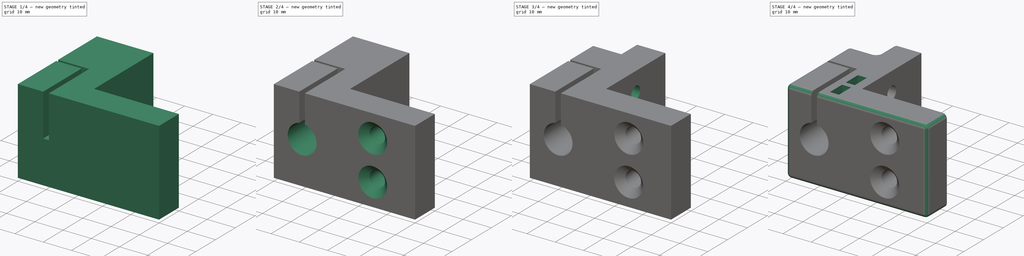
[diagram: build sequence overview — one tinted view per stage of 4, left to right]
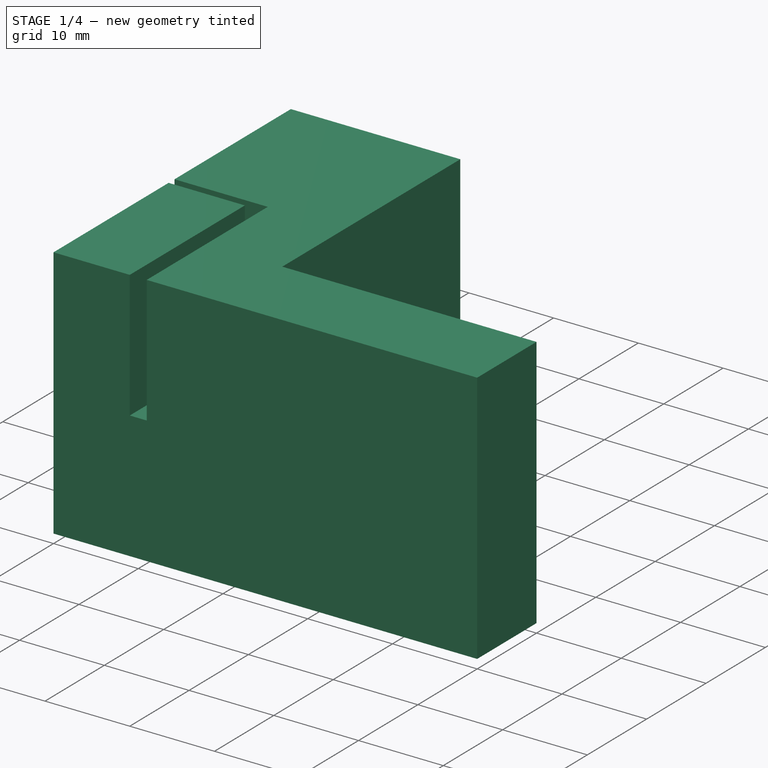
[diagram: stage 1 of 4 — iso view after this stage's code; geometry added in this stage tinted green]
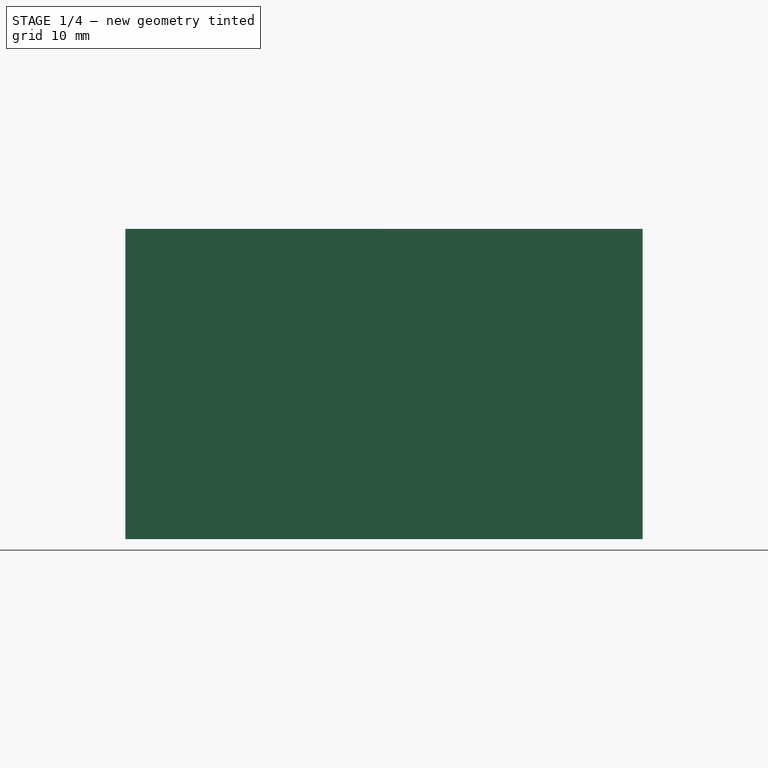
[diagram: stage 1 of 4 — front view after this stage's code; geometry added in this stage tinted green]
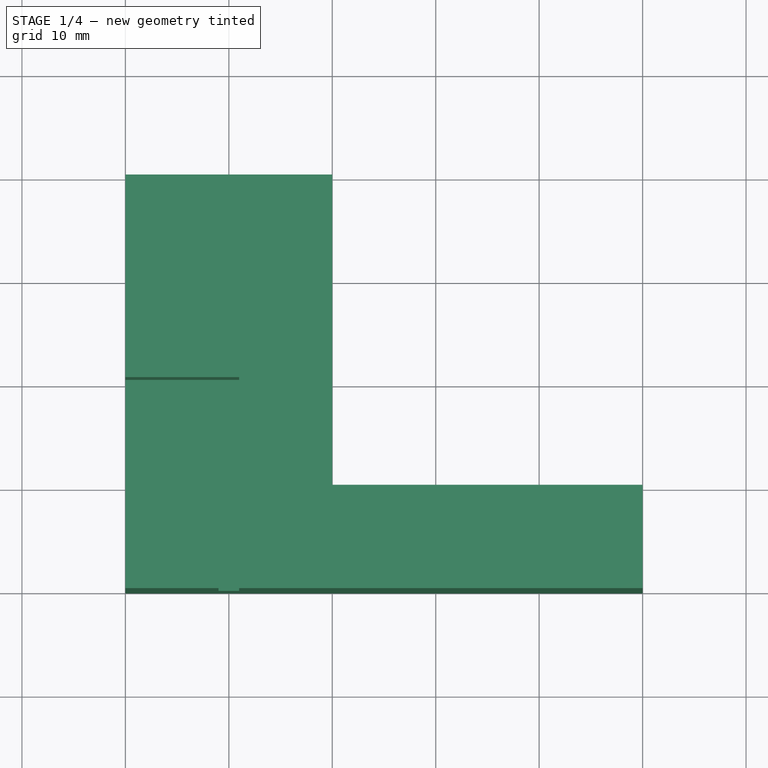
[diagram: stage 1 of 4 — top view after this stage's code; geometry added in this stage tinted green]
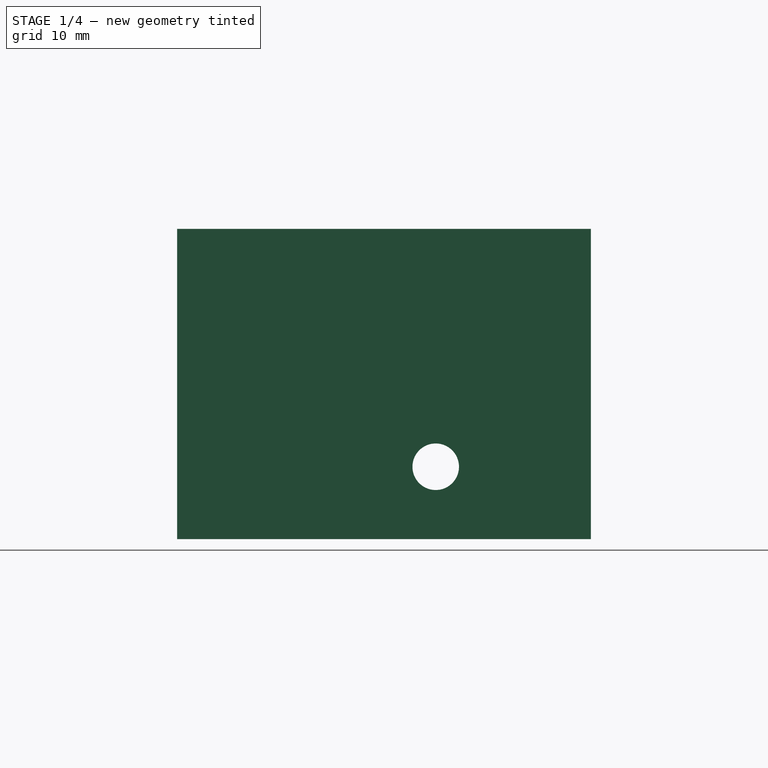
[diagram: stage 1 of 4 — right view after this stage's code; geometry added in this stage tinted green]
FCSTD DOCUMENT  (FreeCAD 0.19R24366 (Git))
Label: Y-rod-mount
License: All rights reserved
LicenseURL: http://en.wikipedia.org/wiki/All_rights_reserved
objects: Sketcher::SketchObject×8, PartDesign::Pocket×4, PartDesign::Plane×3, PartDesign::Hole×3, PartDesign::LinearPattern×3, PartDesign::Pad×1, PartDesign::Fillet×1, PartDesign::Body×1, App::Part×1
note: 33 computed .brp shape members not serialized (recipe doc carries the construction recipe); baked Part::Feature solids carry a one-line shape summary decoded from their .brp

FEATURE [PartDesign::Plane] DatumPlane002
  Length = 87.8452
  MapMode = 5
  Placement = pos=(0,0,0) rot=(1,0,0;1.5708rad)
  ResizeMode = 0
  Width = 67.8452
FEATURE [Sketcher::SketchObject] Sketch006
  FullyConstrained = true
  MapMode = 5
  Placement = pos=(0,0,0) rot=(1,0,0;1.5708rad)
  Support = -> [DatumPlane002]
  sketch-geometry (1):
    g0: Circle CenterX=10 CenterY=15 CenterZ=0 NormalX=0 NormalY=0 NormalZ=1 AngleXU=0 Radius=5.1
  constraints (3):
    c: DistanceX(g-1,g0) = 10
    c: DistanceY(g-1,g0) = 15
    c: Diameter(g0) = 10.2
FEATURE [Sketcher::SketchObject] Sketch007
  FullyConstrained = true
  MapMode = 5
  Placement = pos=(0,0,0) rot=(1,0,0;1.5708rad)
  Support = -> [DatumPlane002]
  sketch-geometry (1):
    g0: Circle CenterX=35 CenterY=8 CenterZ=0 NormalX=0 NormalY=0 NormalZ=1 AngleXU=0 Radius=2
  constraints (3):
    c: DistanceY(g-1,g0) = 8
    c: Diameter(g0) = 4
    c: DistanceX(g-1,g0) = 35
FEATURE [Sketcher::SketchObject] Sketch
  FullyConstrained = true
  MapMode = 5
  Support = -> [XY_Plane001]
  sketch-geometry (6):
    g0: LineSegment StartX=0 StartY=40 StartZ=0 EndX=20 EndY=40 EndZ=0
    g1: LineSegment StartX=20 StartY=40 StartZ=0 EndX=20 EndY=10 EndZ=0
    g2: LineSegment StartX=20 StartY=10 StartZ=0 EndX=50 EndY=10 EndZ=0
    g3: LineSegment StartX=50 StartY=10 StartZ=0 EndX=50 EndY=0 EndZ=0
    g4: LineSegment StartX=50 StartY=0 StartZ=0 EndX=0 EndY=0 EndZ=0
    g5: LineSegment StartX=0 StartY=0 StartZ=0 EndX=0 EndY=40 EndZ=0
  constraints (17):
    c: PointOnObject(g0,g-2)
    c: Horizontal(g0)
    c: Coincident(g0,g1)
    c: Vertical(g1)
    c: Coincident(g1,g2)
    c: Horizontal(g2)
    c: Coincident(g2,g3)
    c: PointOnObject(g3,g-1)
    c: Vertical(g3)
    c: Coincident(g3,g4)
    c: Coincident(g4,g-1)
    c: Coincident(g4,g5)
    c: Coincident(g5,g0)
    c: DistanceX(g1,g2) = 30
    c: DistanceY(g1,g0) = 30
    c: DistanceY(g3,g2) = 10
    c: DistanceX(g0,g0) = 20
FEATURE [PartDesign::Pad] Pad  label="Base Pad"
  Direction = (1,1,1)
  Length = 30
  Length2 = 100
  Profile = -> Sketch
  Type = 0
FEATURE [PartDesign::Plane] DatumPlane
  Length = 76.9583
  MapMode = 5
  Placement = pos=(0,0,0) rot=(0.57735,-0.57735,-0.57735;2.0944rad)
  ResizeMode = 0
  Support = -> [Pad]
  Width = 66.9583
FEATURE [Sketcher::SketchObject] Sketch003
  FullyConstrained = true
  MapMode = 5
  Placement = pos=(0,0,0) rot=(0.57735,-0.57735,-0.57735;2.0944rad)
  Support = -> [DatumPlane]
  sketch-geometry (2):
    g0: Circle CenterX=-6 CenterY=25 CenterZ=0 NormalX=0 NormalY=0 NormalZ=1 AngleXU=0 Radius=2.25
    g1: Circle CenterX=-14 CenterY=25 CenterZ=0 NormalX=0 NormalY=0 NormalZ=1 AngleXU=0 Radius=2.25
  constraints (6):
    c: DistanceX(g0,g-1) = 6
    c: DistanceX(g1,g0) = 8
    c: Diameter(g0) = 4.5
    c: Diameter(g1) = 4.5
    c: DistanceY(g-1,g1) = 25
    c: DistanceY(g-1,g0) = 25
FEATURE [Sketcher::SketchObject] Sketch005
  FullyConstrained = true
  MapMode = 5
  Placement = pos=(0,0,0) rot=(0.57735,-0.57735,-0.57735;2.0944rad)
  Support = -> [DatumPlane]
  sketch-geometry (1):
    g0: Circle CenterX=-25 CenterY=7 CenterZ=0 NormalX=0 NormalY=0 NormalZ=1 AngleXU=0 Radius=2.5
  constraints (3):
    c: DistanceX(g0,g-1) = 25
    c: DistanceY(g-1,g0) = 7
    c: Diameter(g0) = 5
FEATURE [PartDesign::Plane] DatumPlane001
  Length = 88.9642
  MapMode = 5
  Placement = pos=(0,0,30) rot=(0,0,1;0rad)
  ResizeMode = 0
  Width = 78.9642
FEATURE [Sketcher::SketchObject] Sketch008
  FullyConstrained = true
  MapMode = 5
  Placement = pos=(0,0,30) rot=(0,0,1;0rad)
  Support = -> [DatumPlane001]
  sketch-geometry (4):
    g0: LineSegment StartX=0 StartY=40 StartZ=0 EndX=10 EndY=40 EndZ=0
    g1: LineSegment StartX=10 StartY=40 StartZ=0 EndX=10 EndY=32 EndZ=0
    g2: LineSegment StartX=10 StartY=32 StartZ=0 EndX=0 EndY=32 EndZ=0
    g3: LineSegment StartX=0 StartY=32 StartZ=0 EndX=0 EndY=40 EndZ=0
  constraints (12):
    c: Coincident(g0,g1)
    c: Coincident(g1,g2)
    c: Coincident(g2,g3)
    c: Coincident(g3,g0)
    c: Horizontal(g0)
    c: Horizontal(g2)
    c: Vertical(g1)
    c: Vertical(g3)
    c: PointOnObject(g0,g-2)
    c: DistanceY(g-1,g0) = 40
    c: DistanceY(g2,g0) = 8
    c: DistanceX(g0,g0) = 10
FEATURE [Sketcher::SketchObject] Sketch004
  FullyConstrained = true
  MapMode = 5
  Placement = pos=(0,0,30) rot=(0,0,1;0rad)
  Support = -> [DatumPlane001]
  sketch-geometry (7):
    g0: LineSegment StartX=9 StartY=0 StartZ=0 EndX=11 EndY=0 EndZ=0
    g1: LineSegment StartX=11 StartY=0 StartZ=0 EndX=11 EndY=19.4 EndZ=0
    g2: LineSegment StartX=9 StartY=19.4 StartZ=0 EndX=9 EndY=0 EndZ=0
    g3: LineSegment StartX=11 StartY=19.4 StartZ=0 EndX=11 EndY=20.4 EndZ=0
    g4: LineSegment StartX=11 StartY=20.4 StartZ=0 EndX=-4 EndY=20.4 EndZ=0
    g5: LineSegment StartX=-4 StartY=20.4 StartZ=0 EndX=-4 EndY=19.4 EndZ=0
    g6: LineSegment StartX=-4 StartY=19.4 StartZ=0 EndX=9 EndY=19.4 EndZ=0
  constraints (21):
    c: Coincident(g0,g1)
    c: Coincident(g2,g0)
    c: Horizontal(g0)
    c: Vertical(g1)
    c: Vertical(g2)
    c: PointOnObject(g0,g-1)
    c: DistanceX(g0,g0) = 2
    c: DistanceX(g-1,g0) = 9
    c: DistanceY(g0,g1) = 19.4
    c: Coincident(g1,g3)
    c: Vertical(g3)
    c: Coincident(g3,g4)
    c: Horizontal(g4)
    c: Coincident(g4,g5)
    c: Vertical(g5)
    c: Coincident(g5,g6)
    c: Horizontal(g6)
    c: DistanceY(g5,g4) = 1
    c: Coincident(g6,g2)
    c: DistanceX(g4,g3) = 15
    c: DistanceY(g1,g3) = 1
FEATURE [PartDesign::Pocket] Pocket002  label="Screw tightening tolerance"
  BaseFeature = -> Pad
  Length = 15
  Length2 = 100
  Profile = -> Sketch004
  Type = 0
FEATURE [PartDesign::Hole] Hole  label="M4 Hole"
  BaseFeature = -> Pocket002
  Depth = 25
  DepthType = 0
  Diameter = 4.5
  DrillForDepth = false
  DrillPoint = 1
  DrillPointAngle = 118
  HoleCutCountersinkAngle = 90
  HoleCutCustomValues = false
  HoleCutDepth = 11.5
  HoleCutDiameter = 7.4
  HoleCutType = 1
  ModelActualThread = false
  Profile = -> Sketch005
  Tapered = false
  TaperedAngle = 90
  ThreadAngle = 0
  ThreadClass = 0
  ThreadCutOffInner = 0
  ThreadCutOffOuter = 0
  ThreadDirection = 0
  ThreadFit = 0
  ThreadPitch = 0
  ThreadSize = 11
  ThreadType = 1
  Threaded = false
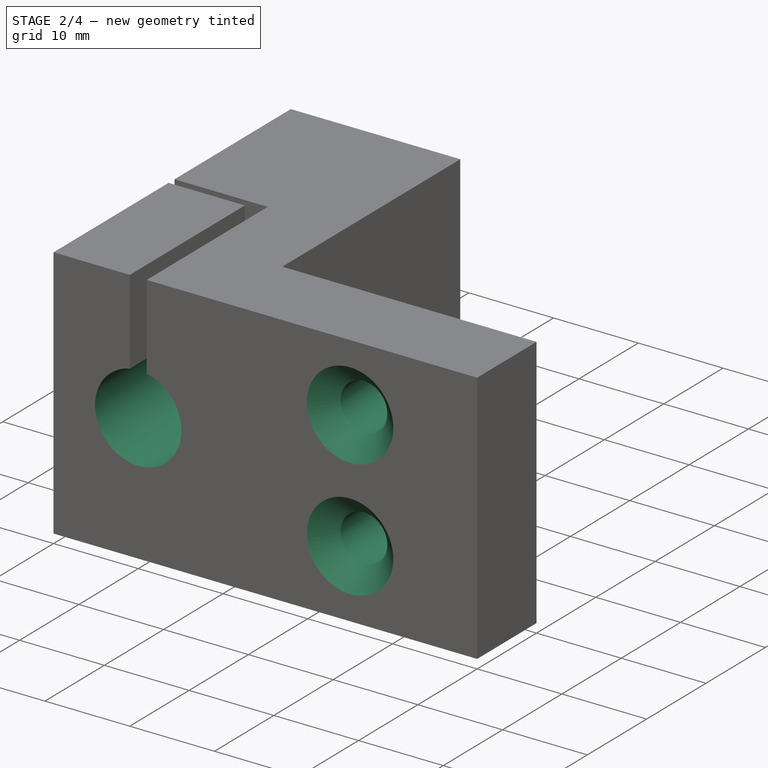
[diagram: stage 2 of 4 — iso view after this stage's code; geometry added in this stage tinted green]
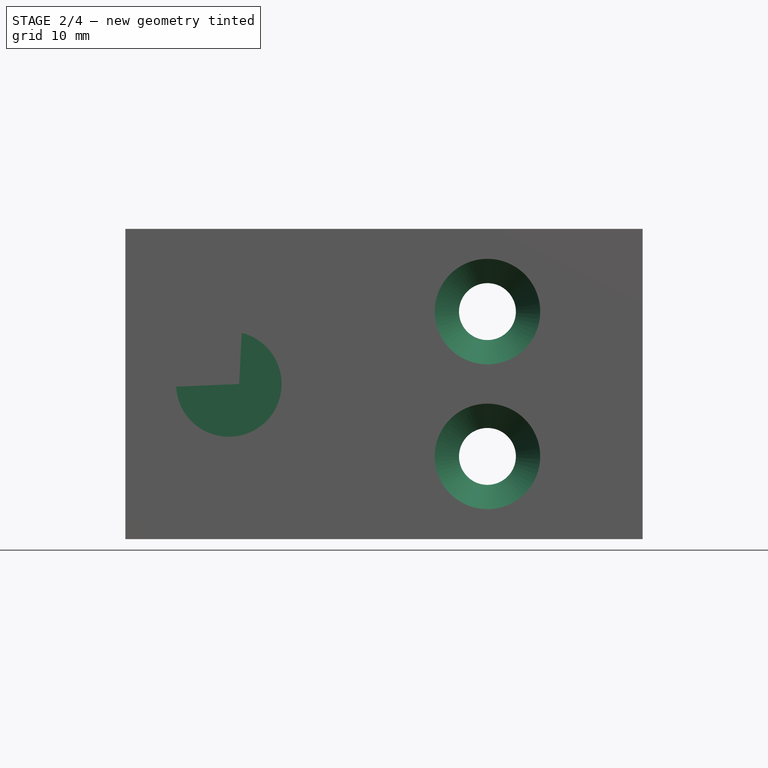
[diagram: stage 2 of 4 — front view after this stage's code; geometry added in this stage tinted green]
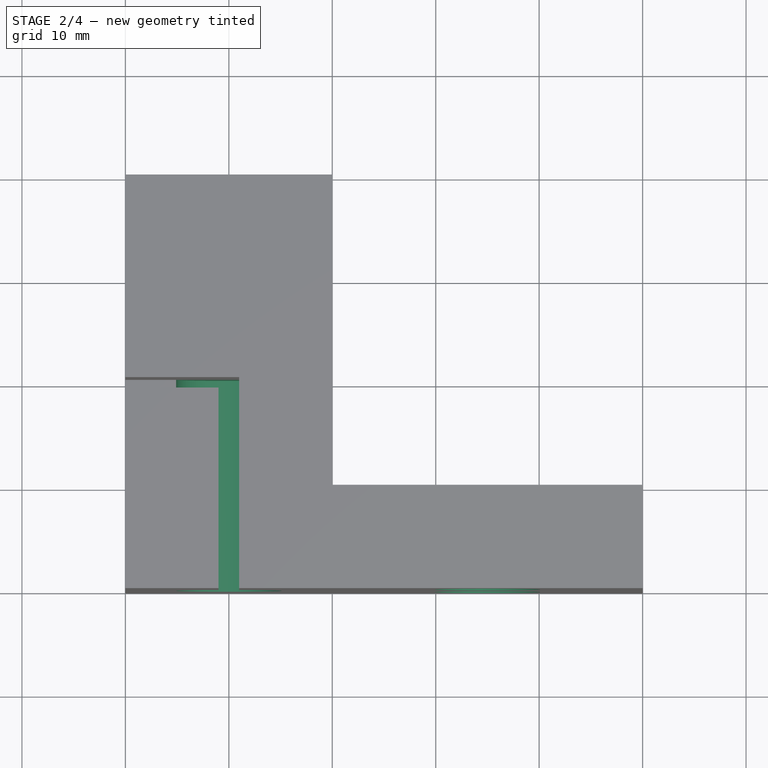
[diagram: stage 2 of 4 — top view after this stage's code; geometry added in this stage tinted green]
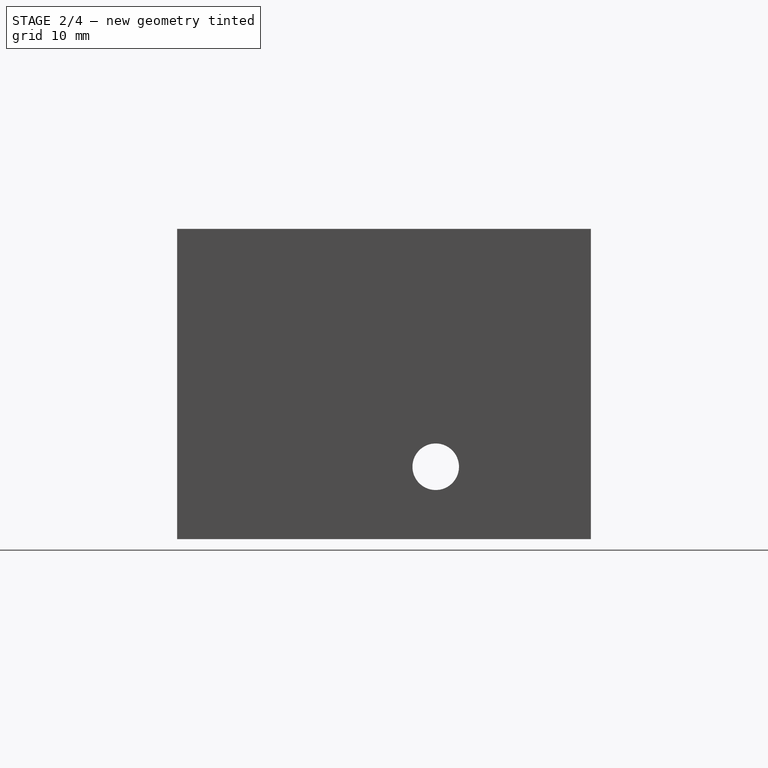
[diagram: stage 2 of 4 — right view after this stage's code; geometry added in this stage tinted green]
FEATURE [PartDesign::Pocket] Pocket003  label="Linear rod pocket 10mm"
  BaseFeature = -> Hole
  Length = 20.4
  Length2 = 100
  Profile = -> Sketch006
  Type = 0
FEATURE [PartDesign::Hole] Hole001  label="M5 hole"
  BaseFeature = -> Pocket003
  Depth = 25
  DepthType = 0
  Diameter = 5.5
  DrillForDepth = false
  DrillPoint = 1
  DrillPointAngle = 118
  HoleCutCountersinkAngle = 90
  HoleCutCustomValues = false
  HoleCutDepth = 0
  HoleCutDiameter = 10.2
  HoleCutType = 2
  ModelActualThread = false
  Profile = -> Sketch007
  Tapered = false
  TaperedAngle = 90
  ThreadAngle = 0
  ThreadClass = 0
  ThreadCutOffInner = 0
  ThreadCutOffOuter = 0
  ThreadDirection = 0
  ThreadFit = 0
  ThreadPitch = 0
  ThreadSize = 13
  ThreadType = 1
  Threaded = false
FEATURE [PartDesign::LinearPattern] LinearPattern001  label="M5 holes"
  BaseFeature = -> Hole001
  Direction = -> Sketch007 [V_Axis]
  Length = 14
  Occurrences = 2
  Originals = -> [Hole001]
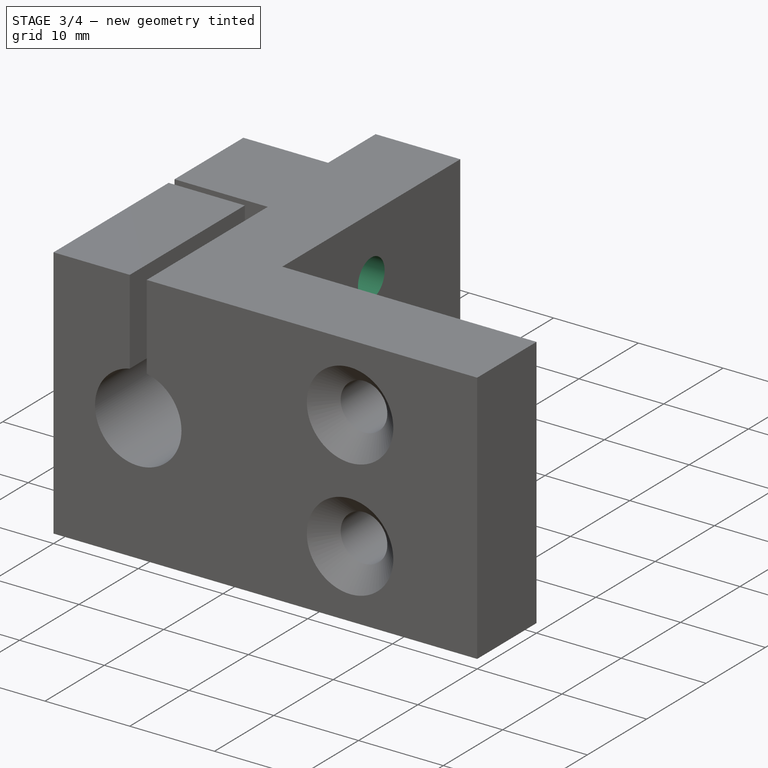
[diagram: stage 3 of 4 — iso view after this stage's code; geometry added in this stage tinted green]
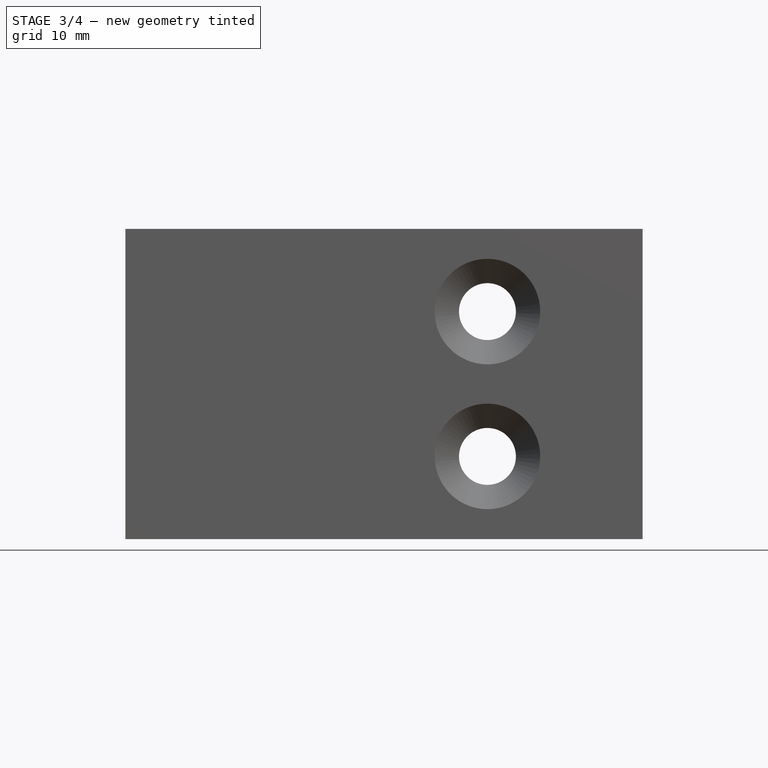
[diagram: stage 3 of 4 — front view after this stage's code; geometry added in this stage tinted green]
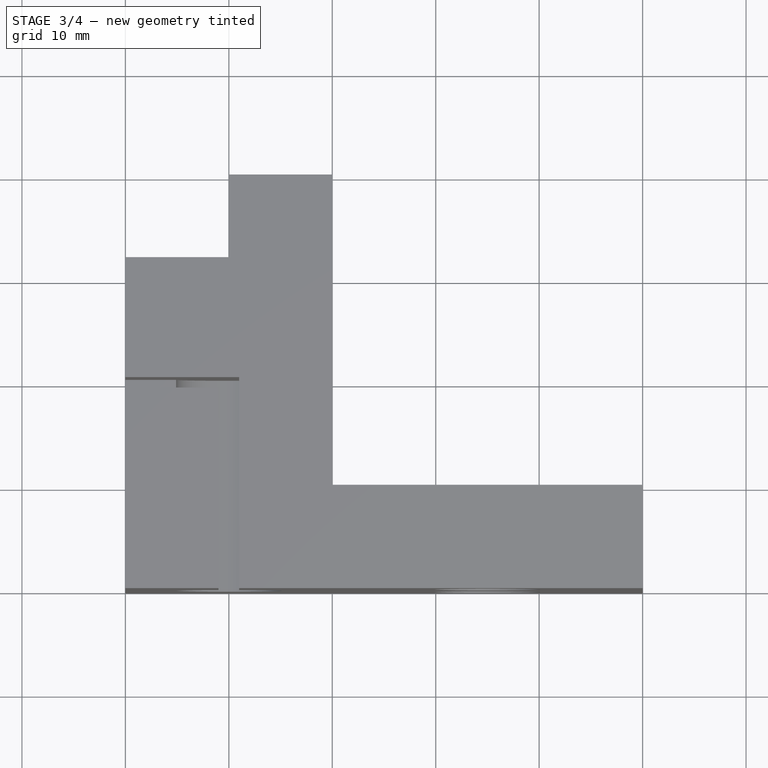
[diagram: stage 3 of 4 — top view after this stage's code; geometry added in this stage tinted green]
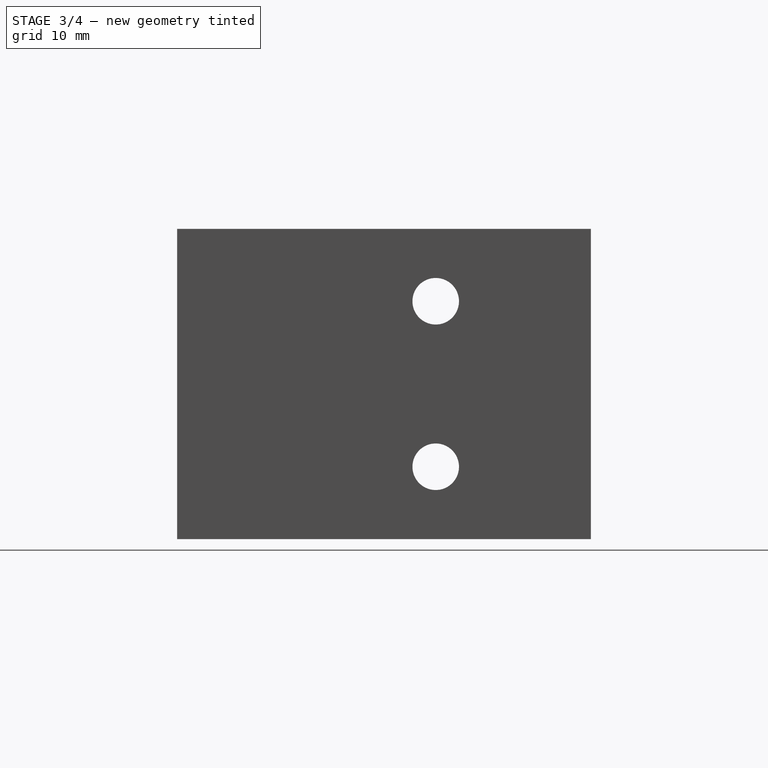
[diagram: stage 3 of 4 — right view after this stage's code; geometry added in this stage tinted green]
FEATURE [PartDesign::Hole] Hole002  label="M3 holes"
  BaseFeature = -> LinearPattern001
  Depth = 18.5
  DepthType = 0
  Diameter = 3.4
  DrillForDepth = false
  DrillPoint = 1
  DrillPointAngle = 118
  HoleCutCountersinkAngle = 90
  HoleCutCustomValues = false
  HoleCutDepth = 1.5
  HoleCutDiameter = 6.2
  HoleCutType = 1
  ModelActualThread = false
  Profile = -> Sketch003
  Tapered = false
  TaperedAngle = 90
  ThreadAngle = 0
  ThreadClass = 0
  ThreadCutOffInner = 0
  ThreadCutOffOuter = 0
  ThreadDirection = 0
  ThreadFit = 0
  ThreadPitch = 0
  ThreadSize = 9
  ThreadType = 1
  Threaded = false
FEATURE [PartDesign::Pocket] Pocket  label="Corner Pocket"
  BaseFeature = -> Hole002
  Length = 30
  Length2 = 100
  Profile = -> Sketch008
  Type = 0
FEATURE [PartDesign::LinearPattern] LinearPattern  label="M4 holes linear pattern"
  BaseFeature = -> Pocket
  Direction = -> Sketch005 [V_Axis]
  Length = 16
  Occurrences = 2
  Originals = -> [Hole]
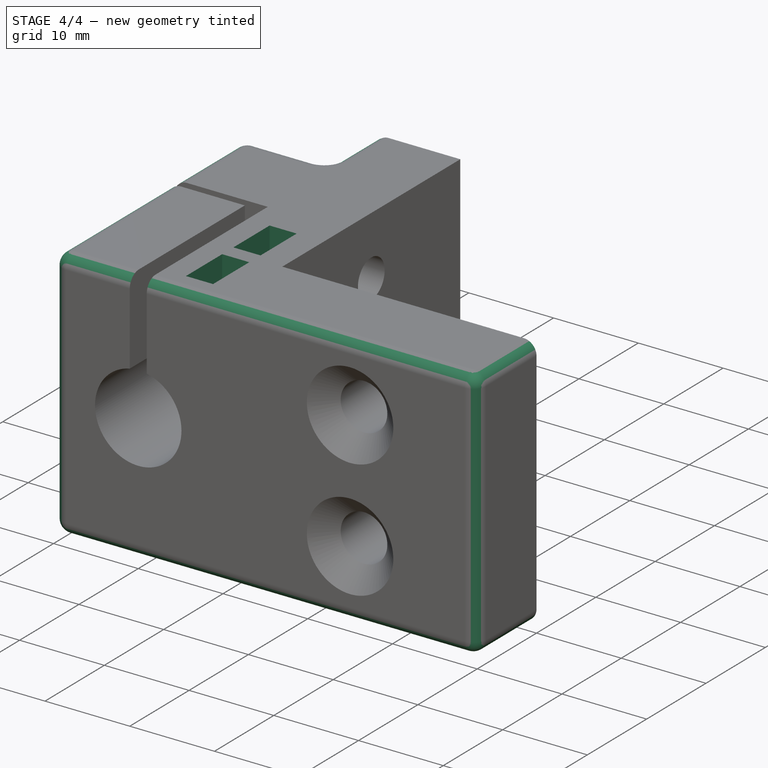
[diagram: stage 4 of 4 — iso view after this stage's code; geometry added in this stage tinted green]
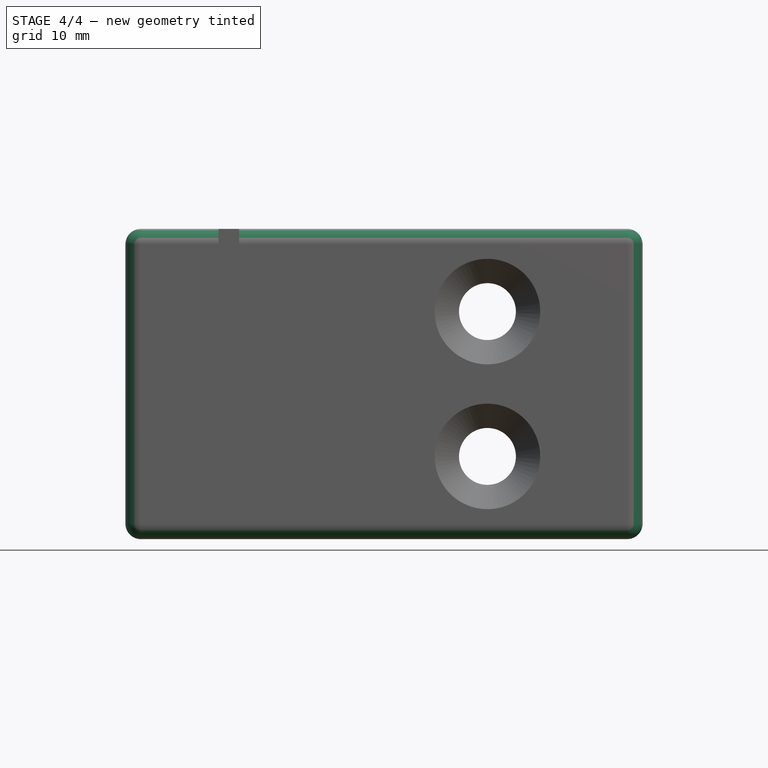
[diagram: stage 4 of 4 — front view after this stage's code; geometry added in this stage tinted green]
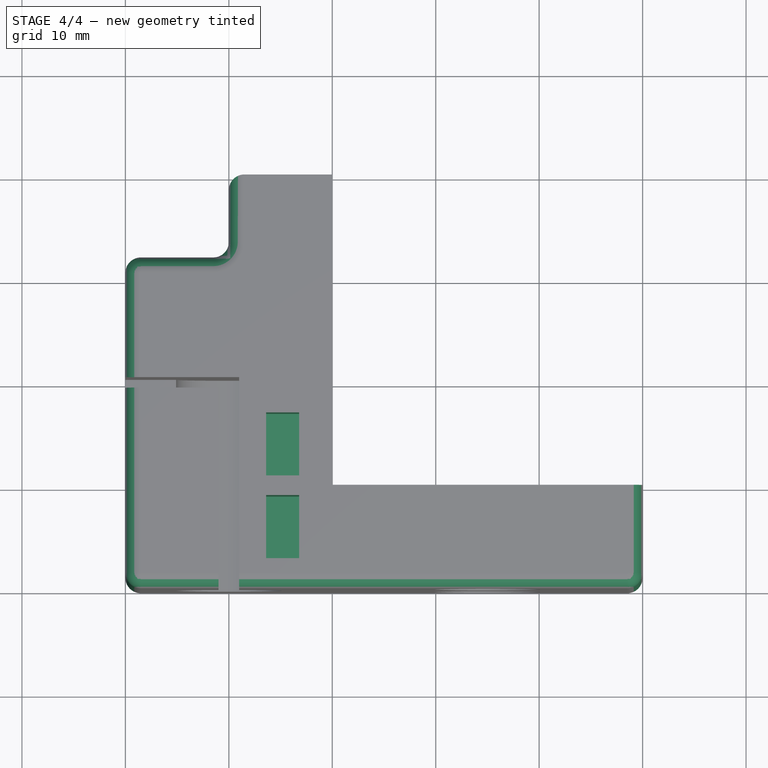
[diagram: stage 4 of 4 — top view after this stage's code; geometry added in this stage tinted green]
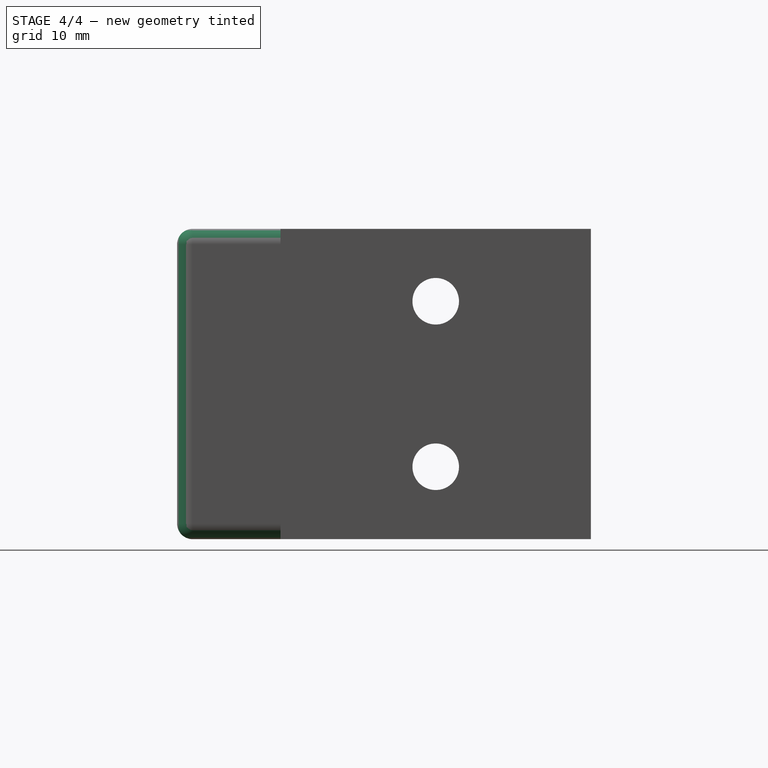
[diagram: stage 4 of 4 — right view after this stage's code; geometry added in this stage tinted green]
FEATURE [Sketcher::SketchObject] Sketch011
  FullyConstrained = true
  MapMode = 5
  Placement = pos=(0,0,30) rot=(0,0,1;0rad)
  Support = -> [DatumPlane001]
  sketch-geometry (4):
    g0: LineSegment StartX=16.8 StartY=2.9 StartZ=0 EndX=13.6 EndY=2.9 EndZ=0
    g1: LineSegment StartX=13.6 StartY=2.9 StartZ=0 EndX=13.6 EndY=9 EndZ=0
    g2: LineSegment StartX=13.6 StartY=9 StartZ=0 EndX=16.8 EndY=9 EndZ=0
    g3: LineSegment StartX=16.8 StartY=9 StartZ=0 EndX=16.8 EndY=2.9 EndZ=0
  constraints (12):
    c: Coincident(g0,g1)
    c: Coincident(g1,g2)
    c: Coincident(g2,g3)
    c: Coincident(g3,g0)
    c: Horizontal(g0)
    c: Horizontal(g2)
    c: Vertical(g1)
    c: Vertical(g3)
    c: DistanceX(g0,g0) = 3.2
    c: DistanceY(g0,g2) = 6.1
    c: DistanceY(g-1,g0) = 2.9
    c: DistanceX(g-1,g0) = 13.6
FEATURE [PartDesign::Pocket] Pocket006  label="M3-nut-pocket"
  BaseFeature = -> LinearPattern
  Length = 8.4
  Length2 = 100
  Profile = -> Sketch011
  Type = 0
FEATURE [PartDesign::LinearPattern] LinearPattern002  label="M3-nut-pockets linear pattern"
  BaseFeature = -> Pocket006
  Direction = -> Sketch011 [V_Axis]
  Length = 8
  Occurrences = 2
  Originals = -> [Pocket006]
FEATURE [PartDesign::Fillet] Fillet
  Base = -> LinearPattern002 [Edge23,Edge9,Edge36,Edge18,Edge7,Edge5,Edge22,Edge33,Edge20,Edge6,Edge4,Edge34,Edge35,Edge8,Edge44,Edge21,Edge45]
  BaseFeature = -> LinearPattern002
  Radius = 1.5
  SupportTransform = false
FEATURE [PartDesign::Body] Body  label="Y-rod-holder-4"
  Group = -> [Sketch,Pad,DatumPlane,Sketch003,DatumPlane001,Sketch004,Pocket002,Sketch005,Hole,DatumPlane002,Sketch006,Pocket003,Sketch007,Hole001,LinearPattern001,Hole002,Sketch008,Pocket,LinearPattern,Sketch011,Pocket006,LinearPattern002,Fillet]
  Origin = -> Origin001
  Placement = pos=(180,160,0) rot=(0,0,1;0rad)
  Tip = -> Fillet
FEATURE [App::Part] Part  label="Y Linear Rod Mounts"
  Group = -> [Body]
  Origin = -> Origin
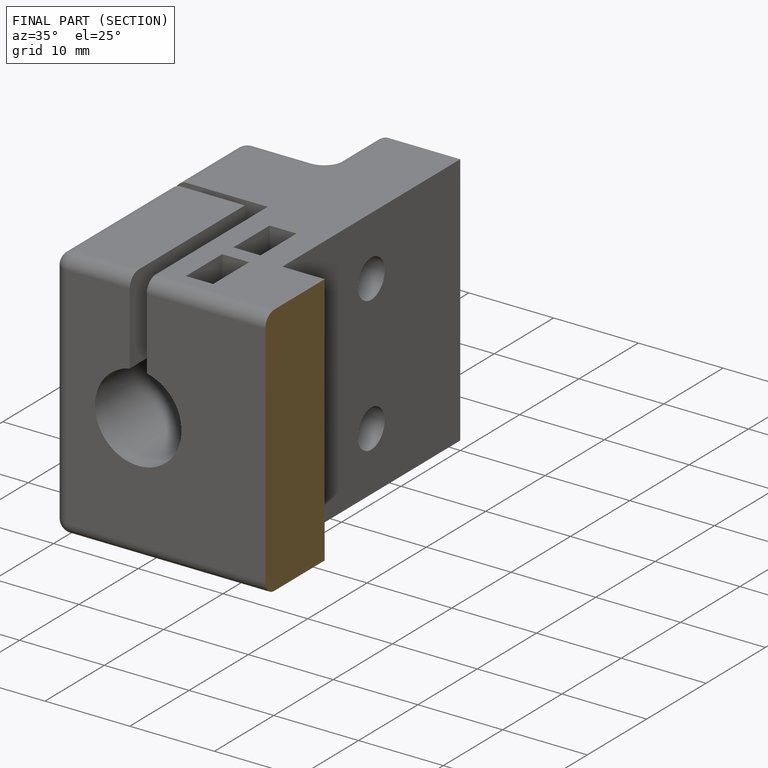
[diagram: finished part — half-section view (interior)]
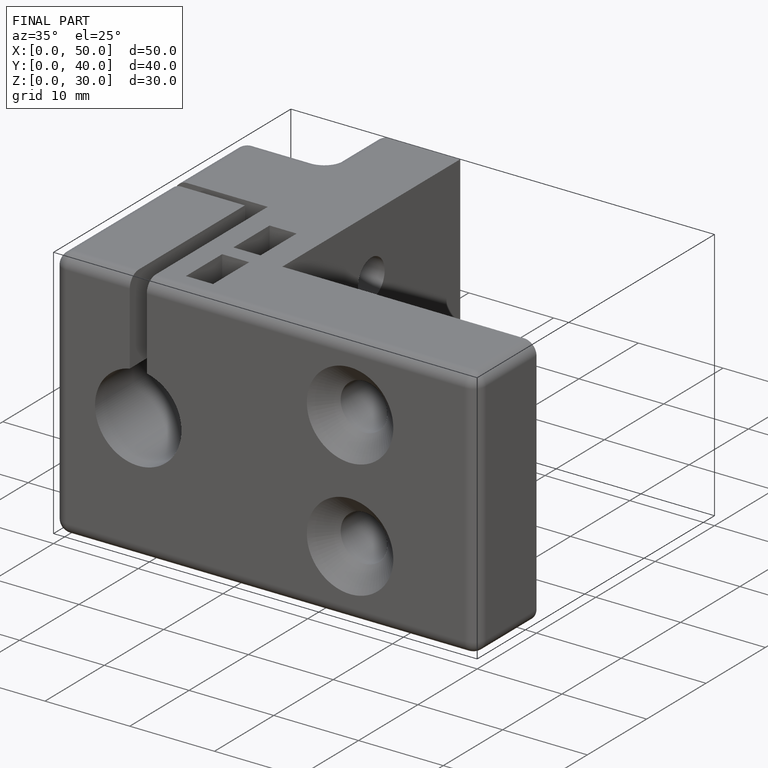
[diagram: finished part — iso view with bounding-box wireframe]
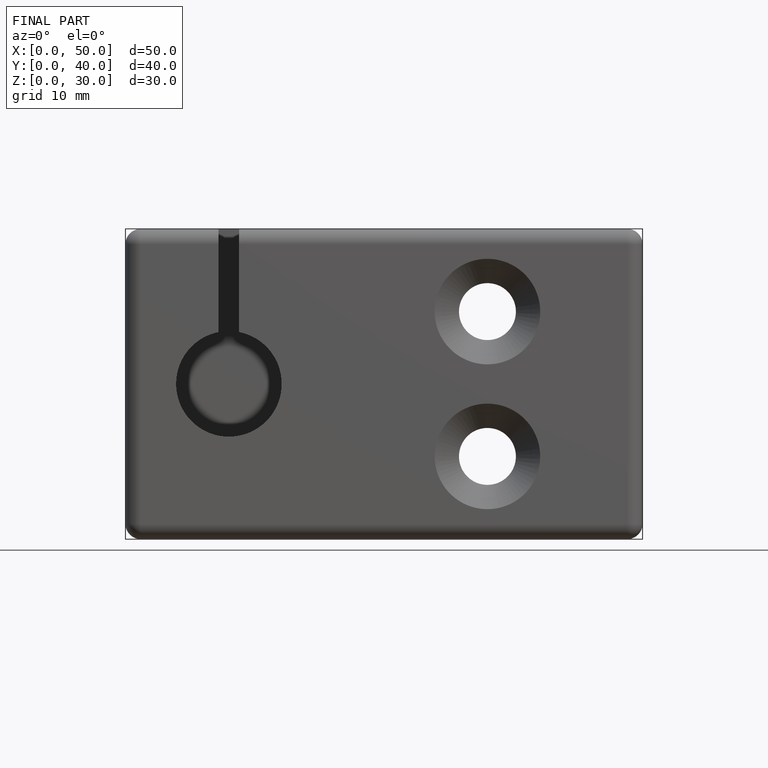
[diagram: finished part — front view with bounding-box wireframe]
